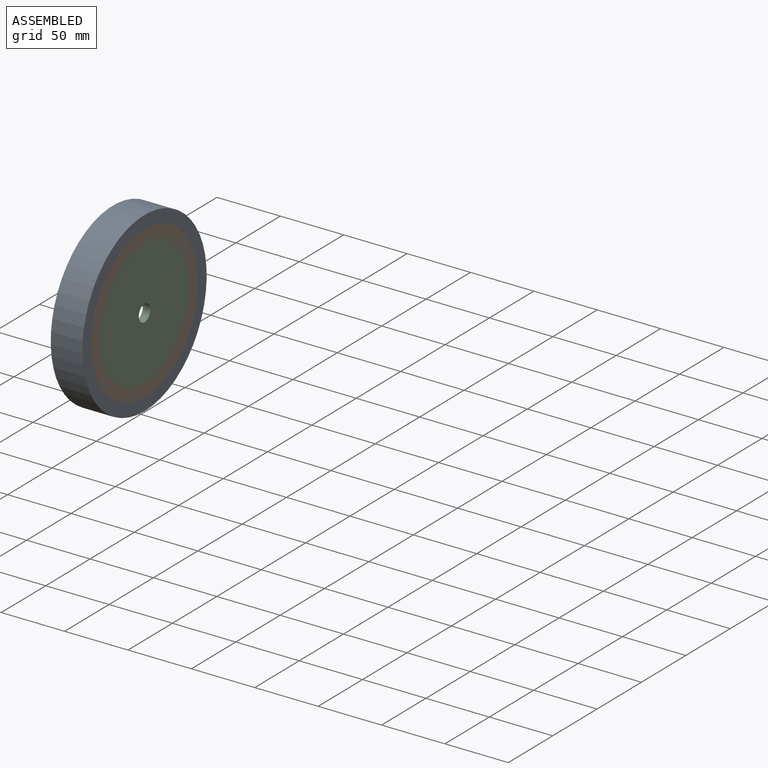
[diagram: assembled view]
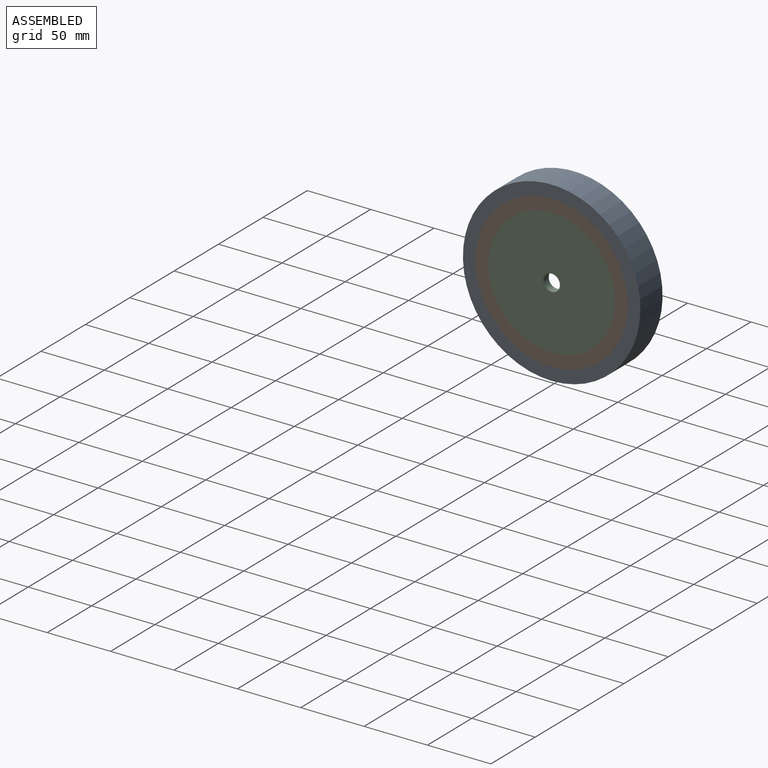
[diagram: assembled view, second angle]
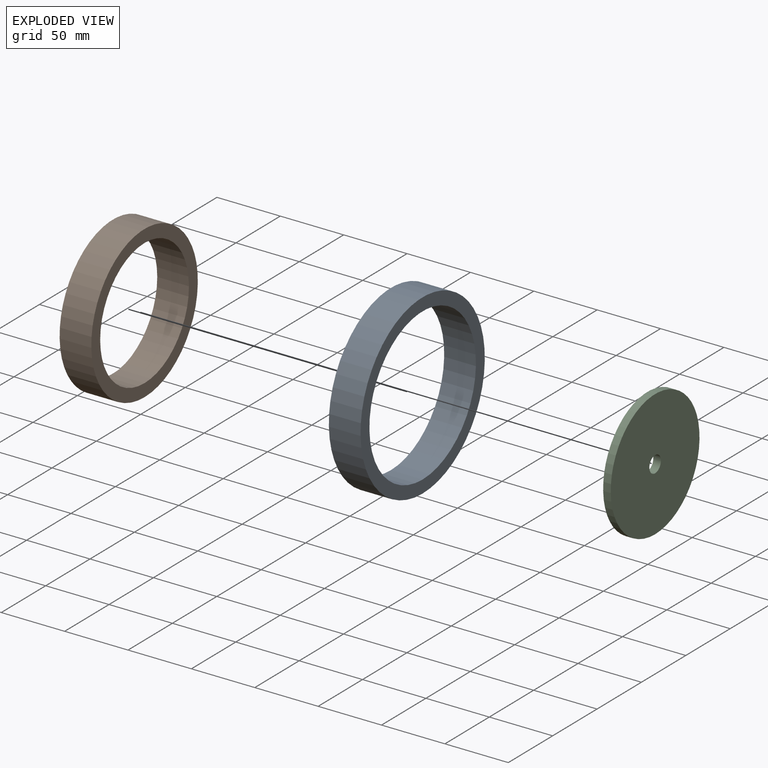
[diagram: exploded view]
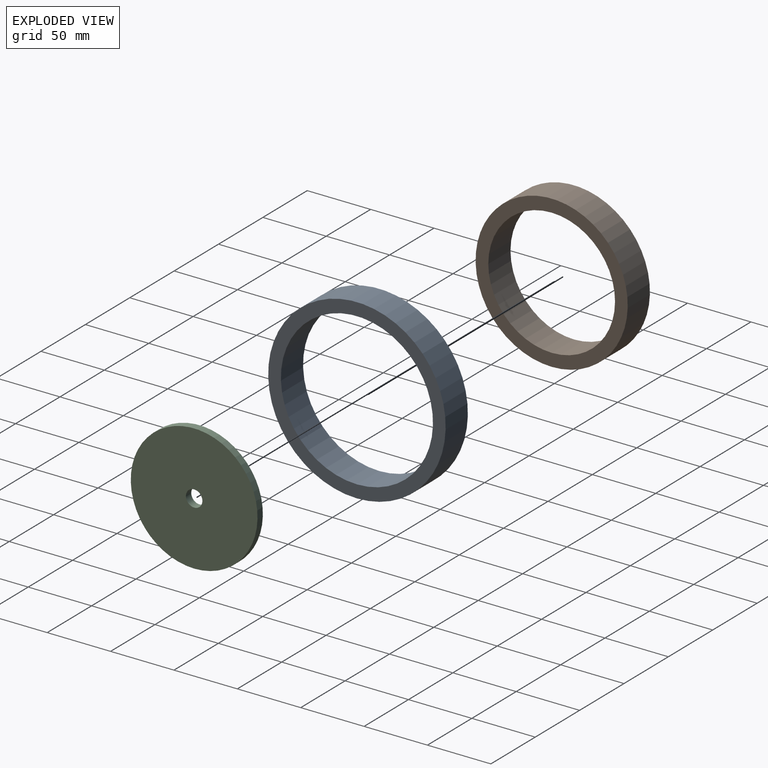
[diagram: exploded view, second angle]
ASSEMBLY  parts=3 mates=2
PART A: 4 faces, bbox 25x140x140 mm
  f0: cylinder r=60mm len=120mm, axis (-1,0,0), area 9424.8mm2, adj f2,f3
  f1: cylinder r=70mm len=140mm, axis (-1,0,0), area 10995.6mm2, adj f2,f3
  f2: plane 140x140mm, normal (1,0,0), area 4084.1mm2, adj f0,f1
  f3: plane 140x140mm, normal (-1,0,0), area 4084.1mm2, adj f0,f1
PART B: 4 faces, bbox 25x120x120 mm
  f0: cylinder r=50mm len=100mm, axis (-1,0,0), area 7854mm2, adj f2,f3
  f1: cylinder r=60mm len=120mm, axis (-1,0,0), area 9424.8mm2, adj f2,f3
  f2: plane 120x120mm, normal (1,0,0), area 3455.8mm2, adj f0,f1
  f3: plane 120x120mm, normal (-1,0,0), area 3455.8mm2, adj f0,f1
PART C: 4 faces, bbox 6x100x100 mm
  f0: cylinder r=6.5mm len=13mm, axis (-1,0,0), area 245mm2, adj f2,f3
  f1: cylinder r=50mm len=100mm, axis (-1,0,0), area 1885mm2, adj f2,f3
  f2: plane 100x100mm, normal (1,0,0), area 7721.2mm2, adj f0,f1
  f3: plane 100x100mm, normal (-1,0,0), area 7721.2mm2, adj f0,f1
PLACE A t=(-9.5,0,0)mm
PLACE B t=(-9.5,0,0)mm
PLACE C at identity fixed
MATE fastened A.f1 <-> B.f1  axis (-1,0,0) through (-22,0,0)mm
MATE fastened C.f1 <-> B.f1  axis (1,0,0) through (3,0,0)mm
